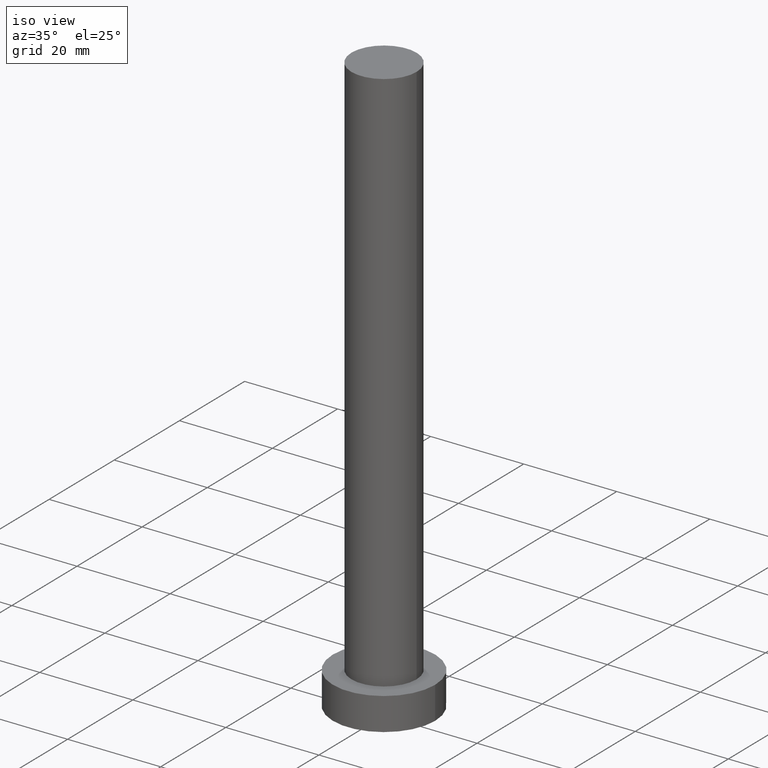
[diagram: clean part render]
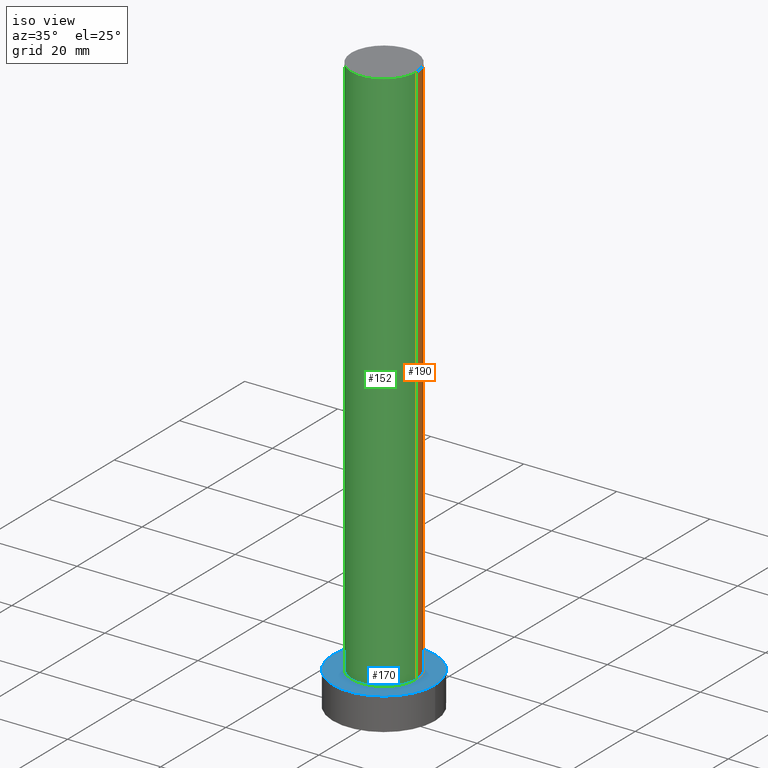
[diagram: same view with three faces highlighted in distinct colors, each labeled with its STEP entity id]
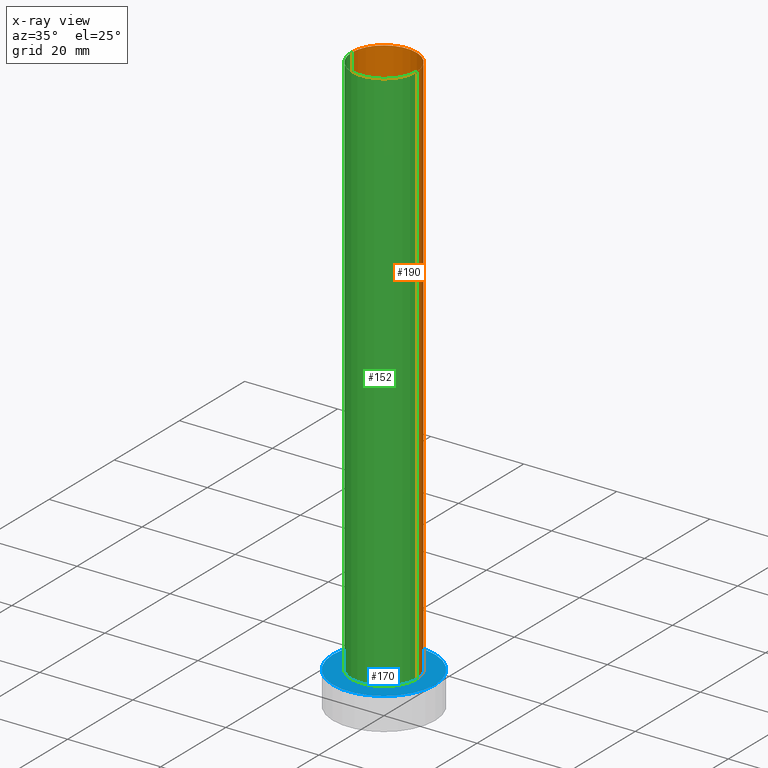
[diagram: x-ray of the same camera — body ghosted, the three highlighted faces saturated]
A machine part, iso view with three faces highlighted in distinct colors.
The next image is the same camera in x-ray (body ghosted, the three faces saturated) — at least one of them is partly hidden behind the body in this view.
Their STEP definitions:

[orange] entity #190 — the highlighted cylindrical surface (partial cylindrical patch) has radius 7 mm, axis along (-0, -0, -1).
#21 = LINE ( 'NONE', #160, #250 ) ;
#25 = DIRECTION ( 'NONE',  ( -1.000000000000000000, 0.000000000000000000, 0.000000000000000000 ) ) ;
#29 = EDGE_LOOP ( 'NONE', ( #229, #126, #104, #192 ) ) ;
#33 = EDGE_CURVE ( 'NONE', #149, #205, #108, .T. ) ;
#58 = CARTESIAN_POINT ( 'NONE',  ( 7.000000000000000000, 8.572527594031473190E-16, 7.000000000000000000 ) ) ;
#59 = CARTESIAN_POINT ( 'NONE',  ( -7.000000000000000000, 0.000000000000000000, 125.0000000000000000 ) ) ;
#63 = CYLINDRICAL_SURFACE ( 'NONE', #145, 7.000000000000000000 ) ;
#78 = EDGE_CURVE ( 'NONE', #157, #173, #21, .T. ) ;
#80 = DIRECTION ( 'NONE',  ( 1.000000000000000000, 0.000000000000000000, 0.000000000000000000 ) ) ;
#91 = AXIS2_PLACEMENT_3D ( 'NONE', #99, #163, #235 ) ;
#99 = CARTESIAN_POINT ( 'NONE',  ( 0.000000000000000000, 0.000000000000000000, 7.000000000000000000 ) ) ;
#103 = FACE_OUTER_BOUND ( 'NONE', #29, .T. ) ;
#104 = ORIENTED_EDGE ( 'NONE', *, *, #181, .T. ) ;
#108 = LINE ( 'NONE', #211, #134 ) ;
#109 = DIRECTION ( 'NONE',  ( -0.000000000000000000, -0.000000000000000000, -1.000000000000000000 ) ) ;
#116 = CARTESIAN_POINT ( 'NONE',  ( 7.000000000000000000, 8.572527594031473190E-16, 125.0000000000000000 ) ) ;
#117 = DIRECTION ( 'NONE',  ( 0.000000000000000000, 0.000000000000000000, 1.000000000000000000 ) ) ;
#120 = CARTESIAN_POINT ( 'NONE',  ( 0.000000000000000000, 0.000000000000000000, 125.0000000000000000 ) ) ;
#126 = ORIENTED_EDGE ( 'NONE', *, *, #33, .T. ) ;
#134 = VECTOR ( 'NONE', #109, 1000.000000000000000 ) ;
#140 = CARTESIAN_POINT ( 'NONE',  ( 0.000000000000000000, 0.000000000000000000, 125.0000000000000000 ) ) ;
#145 = AXIS2_PLACEMENT_3D ( 'NONE', #120, #198, #25 ) ;
#148 = CIRCLE ( 'NONE', #166, 7.000000000000000000 ) ;
#149 = VERTEX_POINT ( 'NONE', #116 ) ;
#157 = VERTEX_POINT ( 'NONE', #59 ) ;
#160 = CARTESIAN_POINT ( 'NONE',  ( -7.000000000000000000, 0.000000000000000000, 125.0000000000000000 ) ) ;
#163 = DIRECTION ( 'NONE',  ( 0.000000000000000000, 0.000000000000000000, 1.000000000000000000 ) ) ;
#166 = AXIS2_PLACEMENT_3D ( 'NONE', #140, #117, #80 ) ;
#169 = EDGE_CURVE ( 'NONE', #149, #157, #148, .T. ) ;
#173 = VERTEX_POINT ( 'NONE', #255 ) ;
#181 = EDGE_CURVE ( 'NONE', #205, #173, #200, .T. ) ;
#190 = ADVANCED_FACE ( 'NONE', ( #103 ), #63, .T. ) ;
#192 = ORIENTED_EDGE ( 'NONE', *, *, #78, .F. ) ;
#198 = DIRECTION ( 'NONE',  ( -0.000000000000000000, -0.000000000000000000, -1.000000000000000000 ) ) ;
#200 = CIRCLE ( 'NONE', #91, 7.000000000000000000 ) ;
#205 = VERTEX_POINT ( 'NONE', #58 ) ;
#211 = CARTESIAN_POINT ( 'NONE',  ( 7.000000000000000000, 8.572527594031473190E-16, 125.0000000000000000 ) ) ;
#229 = ORIENTED_EDGE ( 'NONE', *, *, #169, .F. ) ;
#235 = DIRECTION ( 'NONE',  ( 1.000000000000000000, 0.000000000000000000, 0.000000000000000000 ) ) ;
#236 = DIRECTION ( 'NONE',  ( -0.000000000000000000, -0.000000000000000000, -1.000000000000000000 ) ) ;
#250 = VECTOR ( 'NONE', #236, 1000.000000000000000 ) ;
#255 = CARTESIAN_POINT ( 'NONE',  ( -7.000000000000000000, 0.000000000000000000, 7.000000000000000000 ) ) ;

[blue] entity #170 — the highlighted planar face has unit normal (0, 0, 1).
#5 = ORIENTED_EDGE ( 'NONE', *, *, #55, .F. ) ;
#12 = AXIS2_PLACEMENT_3D ( 'NONE', #22, #45, #118 ) ;
#22 = CARTESIAN_POINT ( 'NONE',  ( 0.000000000000000000, 0.000000000000000000, 7.000000000000000000 ) ) ;
#41 = ORIENTED_EDGE ( 'NONE', *, *, #147, .T. ) ;
#43 = DIRECTION ( 'NONE',  ( 0.000000000000000000, 0.000000000000000000, 1.000000000000000000 ) ) ;
#45 = DIRECTION ( 'NONE',  ( 0.000000000000000000, 0.000000000000000000, 1.000000000000000000 ) ) ;
#48 = ORIENTED_EDGE ( 'NONE', *, *, #199, .T. ) ;
#53 = DIRECTION ( 'NONE',  ( 1.000000000000000000, 0.000000000000000000, 0.000000000000000000 ) ) ;
#55 = EDGE_CURVE ( 'NONE', #173, #205, #233, .T. ) ;
#56 = CARTESIAN_POINT ( 'NONE',  ( 0.000000000000000000, 0.000000000000000000, 7.000000000000000000 ) ) ;
#58 = CARTESIAN_POINT ( 'NONE',  ( 7.000000000000000000, 8.572527594031473190E-16, 7.000000000000000000 ) ) ;
#69 = ORIENTED_EDGE ( 'NONE', *, *, #181, .F. ) ;
#84 = AXIS2_PLACEMENT_3D ( 'NONE', #56, #132, #186 ) ;
#87 = CIRCLE ( 'NONE', #174, 11.00000000000000000 ) ;
#91 = AXIS2_PLACEMENT_3D ( 'NONE', #99, #163, #235 ) ;
#95 = VERTEX_POINT ( 'NONE', #143 ) ;
#99 = CARTESIAN_POINT ( 'NONE',  ( 0.000000000000000000, 0.000000000000000000, 7.000000000000000000 ) ) ;
#101 = DIRECTION ( 'NONE',  ( 1.000000000000000000, 0.000000000000000000, 0.000000000000000000 ) ) ;
#114 = EDGE_LOOP ( 'NONE', ( #5, #69 ) ) ;
#115 = EDGE_LOOP ( 'NONE', ( #41, #48 ) ) ;
#118 = DIRECTION ( 'NONE',  ( 1.000000000000000000, 0.000000000000000000, -0.000000000000000000 ) ) ;
#121 = AXIS2_PLACEMENT_3D ( 'NONE', #136, #43, #101 ) ;
#123 = VERTEX_POINT ( 'NONE', #146 ) ;
#132 = DIRECTION ( 'NONE',  ( 0.000000000000000000, 0.000000000000000000, 1.000000000000000000 ) ) ;
#136 = CARTESIAN_POINT ( 'NONE',  ( 0.000000000000000000, 0.000000000000000000, 7.000000000000000000 ) ) ;
#143 = CARTESIAN_POINT ( 'NONE',  ( -11.00000000000000000, 0.000000000000000000, 7.000000000000000000 ) ) ;
#146 = CARTESIAN_POINT ( 'NONE',  ( 11.00000000000000000, 1.347111479062088405E-15, 7.000000000000000000 ) ) ;
#147 = EDGE_CURVE ( 'NONE', #95, #123, #230, .T. ) ;
#163 = DIRECTION ( 'NONE',  ( 0.000000000000000000, 0.000000000000000000, 1.000000000000000000 ) ) ;
#170 = ADVANCED_FACE ( 'NONE', ( #218, #194 ), #179, .T. ) ;
#173 = VERTEX_POINT ( 'NONE', #255 ) ;
#174 = AXIS2_PLACEMENT_3D ( 'NONE', #224, #245, #53 ) ;
#179 = PLANE ( 'NONE',  #12 ) ;
#181 = EDGE_CURVE ( 'NONE', #205, #173, #200, .T. ) ;
#186 = DIRECTION ( 'NONE',  ( 1.000000000000000000, 0.000000000000000000, 0.000000000000000000 ) ) ;
#194 = FACE_OUTER_BOUND ( 'NONE', #115, .T. ) ;
#199 = EDGE_CURVE ( 'NONE', #123, #95, #87, .T. ) ;
#200 = CIRCLE ( 'NONE', #91, 7.000000000000000000 ) ;
#205 = VERTEX_POINT ( 'NONE', #58 ) ;
#218 = FACE_BOUND ( 'NONE', #114, .T. ) ;
#224 = CARTESIAN_POINT ( 'NONE',  ( 0.000000000000000000, 0.000000000000000000, 7.000000000000000000 ) ) ;
#230 = CIRCLE ( 'NONE', #121, 11.00000000000000000 ) ;
#233 = CIRCLE ( 'NONE', #84, 7.000000000000000000 ) ;
#235 = DIRECTION ( 'NONE',  ( 1.000000000000000000, 0.000000000000000000, 0.000000000000000000 ) ) ;
#245 = DIRECTION ( 'NONE',  ( 0.000000000000000000, 0.000000000000000000, 1.000000000000000000 ) ) ;
#255 = CARTESIAN_POINT ( 'NONE',  ( -7.000000000000000000, 0.000000000000000000, 7.000000000000000000 ) ) ;

[green] entity #152 — the highlighted cylindrical surface (partial cylindrical patch) has radius 7 mm, axis along (-0, -0, -1).
#21 = LINE ( 'NONE', #160, #250 ) ;
#23 = CARTESIAN_POINT ( 'NONE',  ( 0.000000000000000000, 0.000000000000000000, 125.0000000000000000 ) ) ;
#28 = EDGE_CURVE ( 'NONE', #157, #149, #156, .T. ) ;
#32 = AXIS2_PLACEMENT_3D ( 'NONE', #23, #252, #178 ) ;
#33 = EDGE_CURVE ( 'NONE', #149, #205, #108, .T. ) ;
#35 = DIRECTION ( 'NONE',  ( 0.000000000000000000, 0.000000000000000000, 1.000000000000000000 ) ) ;
#55 = EDGE_CURVE ( 'NONE', #173, #205, #233, .T. ) ;
#56 = CARTESIAN_POINT ( 'NONE',  ( 0.000000000000000000, 0.000000000000000000, 7.000000000000000000 ) ) ;
#58 = CARTESIAN_POINT ( 'NONE',  ( 7.000000000000000000, 8.572527594031473190E-16, 7.000000000000000000 ) ) ;
#59 = CARTESIAN_POINT ( 'NONE',  ( -7.000000000000000000, 0.000000000000000000, 125.0000000000000000 ) ) ;
#66 = ORIENTED_EDGE ( 'NONE', *, *, #28, .F. ) ;
#74 = ORIENTED_EDGE ( 'NONE', *, *, #78, .T. ) ;
#78 = EDGE_CURVE ( 'NONE', #157, #173, #21, .T. ) ;
#84 = AXIS2_PLACEMENT_3D ( 'NONE', #56, #132, #186 ) ;
#97 = ORIENTED_EDGE ( 'NONE', *, *, #55, .T. ) ;
#108 = LINE ( 'NONE', #211, #134 ) ;
#109 = DIRECTION ( 'NONE',  ( -0.000000000000000000, -0.000000000000000000, -1.000000000000000000 ) ) ;
#116 = CARTESIAN_POINT ( 'NONE',  ( 7.000000000000000000, 8.572527594031473190E-16, 125.0000000000000000 ) ) ;
#125 = DIRECTION ( 'NONE',  ( 1.000000000000000000, 0.000000000000000000, 0.000000000000000000 ) ) ;
#132 = DIRECTION ( 'NONE',  ( 0.000000000000000000, 0.000000000000000000, 1.000000000000000000 ) ) ;
#134 = VECTOR ( 'NONE', #109, 1000.000000000000000 ) ;
#149 = VERTEX_POINT ( 'NONE', #116 ) ;
#152 = ADVANCED_FACE ( 'NONE', ( #234 ), #219, .T. ) ;
#156 = CIRCLE ( 'NONE', #241, 7.000000000000000000 ) ;
#157 = VERTEX_POINT ( 'NONE', #59 ) ;
#159 = EDGE_LOOP ( 'NONE', ( #231, #66, #74, #97 ) ) ;
#160 = CARTESIAN_POINT ( 'NONE',  ( -7.000000000000000000, 0.000000000000000000, 125.0000000000000000 ) ) ;
#173 = VERTEX_POINT ( 'NONE', #255 ) ;
#178 = DIRECTION ( 'NONE',  ( -1.000000000000000000, 0.000000000000000000, 0.000000000000000000 ) ) ;
#186 = DIRECTION ( 'NONE',  ( 1.000000000000000000, 0.000000000000000000, 0.000000000000000000 ) ) ;
#205 = VERTEX_POINT ( 'NONE', #58 ) ;
#207 = CARTESIAN_POINT ( 'NONE',  ( 0.000000000000000000, 0.000000000000000000, 125.0000000000000000 ) ) ;
#211 = CARTESIAN_POINT ( 'NONE',  ( 7.000000000000000000, 8.572527594031473190E-16, 125.0000000000000000 ) ) ;
#219 = CYLINDRICAL_SURFACE ( 'NONE', #32, 7.000000000000000000 ) ;
#231 = ORIENTED_EDGE ( 'NONE', *, *, #33, .F. ) ;
#233 = CIRCLE ( 'NONE', #84, 7.000000000000000000 ) ;
#234 = FACE_OUTER_BOUND ( 'NONE', #159, .T. ) ;
#236 = DIRECTION ( 'NONE',  ( -0.000000000000000000, -0.000000000000000000, -1.000000000000000000 ) ) ;
#241 = AXIS2_PLACEMENT_3D ( 'NONE', #207, #35, #125 ) ;
#250 = VECTOR ( 'NONE', #236, 1000.000000000000000 ) ;
#252 = DIRECTION ( 'NONE',  ( -0.000000000000000000, -0.000000000000000000, -1.000000000000000000 ) ) ;
#255 = CARTESIAN_POINT ( 'NONE',  ( -7.000000000000000000, 0.000000000000000000, 7.000000000000000000 ) ) ;